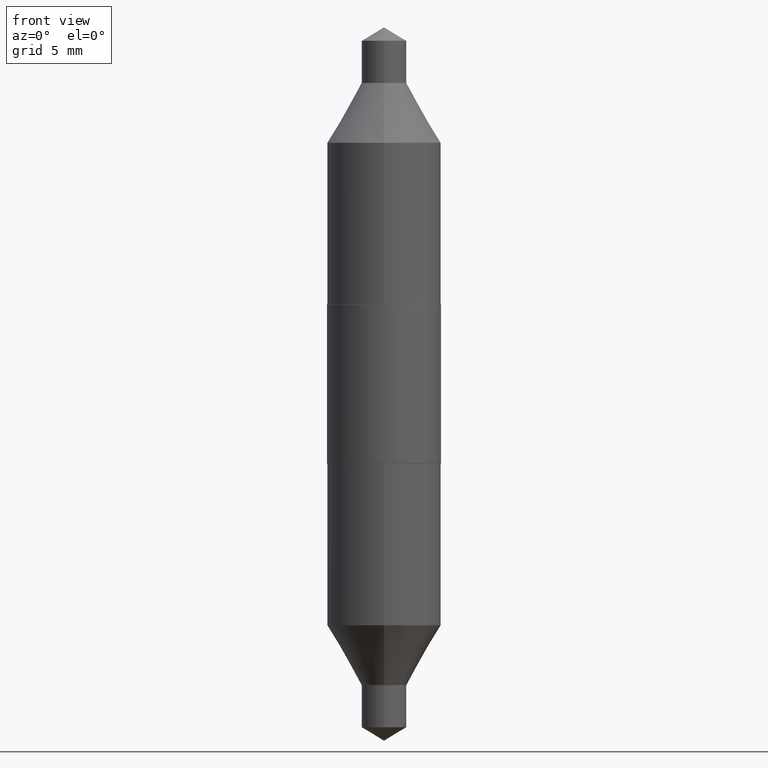
[diagram: clean part render]
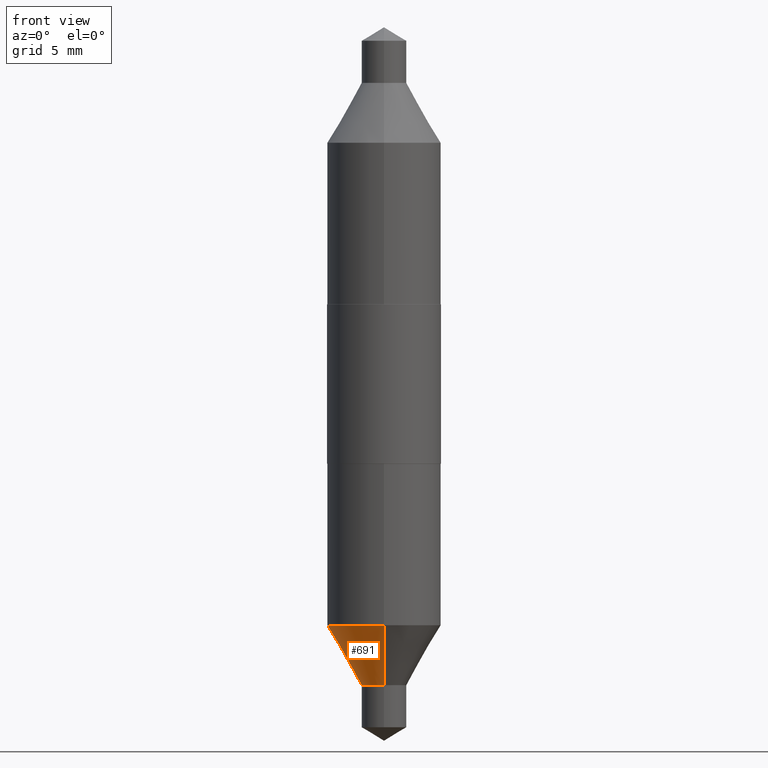
[diagram: same view with one face highlighted and labeled with its STEP entity id]
A machine part, front view. The second image highlights one B-rep face of the part: STEP entity #691.
In plain terms, the highlighted conical surface has half-angle 30 deg.
Its self-contained STEP definition (entity closure, byte-faithful):
#1 = DIRECTION ( 'NONE',  ( -6.982962677686264344E-15, -1.000000000000000000, 3.469013325287952504E-15 ) ) ;
#36 = VECTOR ( 'NONE', #699, 39.37007874015748143 ) ;
#55 = VERTEX_POINT ( 'NONE', #525 ) ;
#77 = AXIS2_PLACEMENT_3D ( 'NONE', #108, #490, #1 ) ;
#78 = DIRECTION ( 'NONE',  ( -2.432613365236688124E-29, 3.509891061967582916E-15, 1.000000000000000000 ) ) ;
#101 = CARTESIAN_POINT ( 'NONE',  ( 4.405364961712852849E-16, 0.06199999999999709216, -0.8315000000000002389 ) ) ;
#108 = CARTESIAN_POINT ( 'NONE',  ( 1.623165560573778972E-29, -2.333850207520305882E-15, -0.6660891478771698848 ) ) ;
#116 = LINE ( 'NONE', #268, #36 ) ;
#124 = ORIENTED_EDGE ( 'NONE', *, *, #267, .T. ) ;
#126 = ORIENTED_EDGE ( 'NONE', *, *, #514, .F. ) ;
#131 = CONICAL_SURFACE ( 'NONE', #269, 0.06200000000000000649, 0.5235987755982927094 ) ;
#150 = FACE_OUTER_BOUND ( 'NONE', #165, .T. ) ;
#165 = EDGE_LOOP ( 'NONE', ( #126, #124, #616, #409 ) ) ;
#214 = CIRCLE ( 'NONE', #77, 0.1575000000000000289 ) ;
#219 = DIRECTION ( 'NONE',  ( -6.982962677686265922E-15, -1.000000000000000000, 4.406206441393972551E-15 ) ) ;
#223 = VERTEX_POINT ( 'NONE', #661 ) ;
#267 = EDGE_CURVE ( 'NONE', #591, #55, #531, .T. ) ;
#268 = CARTESIAN_POINT ( 'NONE',  ( 4.405364961712823759E-16, 0.06199999999999709216, -0.8315000000000002389 ) ) ;
#269 = AXIS2_PLACEMENT_3D ( 'NONE', #465, #524, #472 ) ;
#295 = CARTESIAN_POINT ( 'NONE',  ( -4.329436860165282505E-16, -0.06200000000000292083, -0.8314999999999996838 ) ) ;
#317 = EDGE_CURVE ( 'NONE', #55, #617, #670, .T. ) ;
#409 = ORIENTED_EDGE ( 'NONE', *, *, #536, .F. ) ;
#465 = CARTESIAN_POINT ( 'NONE',  ( 2.025546210202964853E-29, -2.914424278938668661E-15, -0.8315000000000000169 ) ) ;
#472 = DIRECTION ( 'NONE',  ( -6.982962677686265922E-15, -1.000000000000000000, 4.406206441393972551E-15 ) ) ;
#490 = DIRECTION ( 'NONE',  ( -2.432613365236688124E-29, 3.509891061967582916E-15, 1.000000000000000000 ) ) ;
#501 = VECTOR ( 'NONE', #614, 39.37007874015748143 ) ;
#514 = EDGE_CURVE ( 'NONE', #591, #223, #116, .T. ) ;
#524 = DIRECTION ( 'NONE',  ( -2.432613365236688124E-29, 3.509891061967582916E-15, 1.000000000000000000 ) ) ;
#525 = CARTESIAN_POINT ( 'NONE',  ( -4.329436860165282505E-16, -0.06200000000000292083, -0.8314999999999996838 ) ) ;
#531 = CIRCLE ( 'NONE', #621, 0.06200000000000000649 ) ;
#536 = EDGE_CURVE ( 'NONE', #223, #617, #214, .T. ) ;
#559 = CARTESIAN_POINT ( 'NONE',  ( 2.025546210202964853E-29, -2.914424278938668661E-15, -0.8315000000000000169 ) ) ;
#591 = VERTEX_POINT ( 'NONE', #101 ) ;
#614 = DIRECTION ( 'NONE',  ( -3.491481338843117184E-15, -0.4999999999999916178, 0.8660254037844434816 ) ) ;
#616 = ORIENTED_EDGE ( 'NONE', *, *, #317, .T. ) ;
#617 = VERTEX_POINT ( 'NONE', #688 ) ;
#621 = AXIS2_PLACEMENT_3D ( 'NONE', #559, #78, #219 ) ;
#661 = CARTESIAN_POINT ( 'NONE',  ( 1.119104808822168647E-15, 0.1574999999999976974, -0.6660891478771703289 ) ) ;
#670 = LINE ( 'NONE', #295, #501 ) ;
#688 = CARTESIAN_POINT ( 'NONE',  ( -1.099816621735570717E-15, -0.1575000000000023603, -0.6660891478771693297 ) ) ;
#691 = ADVANCED_FACE ( 'NONE', ( #150 ), #131, .T. ) ;
#699 = DIRECTION ( 'NONE',  ( 3.552713678800441765E-15, 0.4999999999999977240, 0.8660254037844398178 ) ) ;